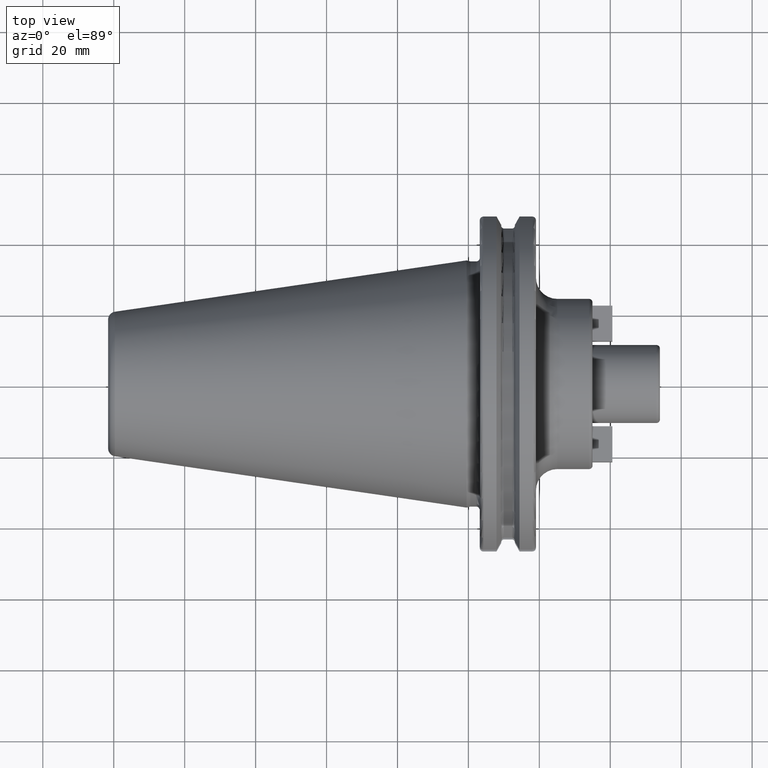
[diagram: clean part render]
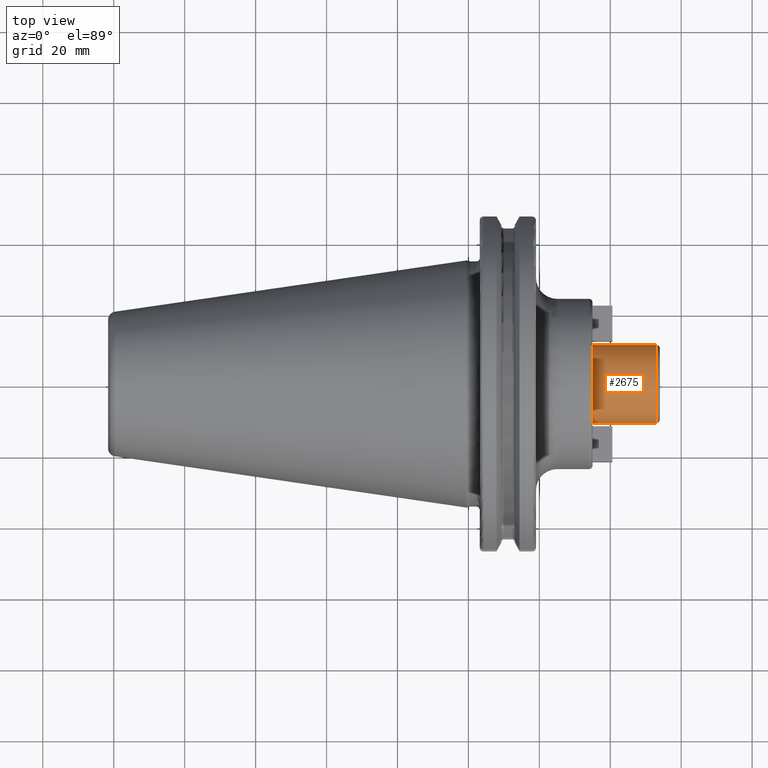
[diagram: same view with one face highlighted and labeled with its STEP entity id]
A machine part, top view. The second image highlights one B-rep face of the part: STEP entity #2675.
In plain terms, the highlighted cylindrical surface (partial cylindrical patch) has radius 11 mm, axis along (1, 0, 0).
Its self-contained STEP definition (entity closure, byte-faithful):
#944=CARTESIAN_POINT('',(3.5E1,0.E0,0.E0));
#945=DIRECTION('',(1.E0,0.E0,0.E0));
#946=DIRECTION('',(0.E0,1.E0,0.E0));
#947=AXIS2_PLACEMENT_3D('',#944,#945,#946);
#996=CARTESIAN_POINT('',(5.3E1,0.E0,0.E0));
#997=DIRECTION('',(-1.E0,0.E0,0.E0));
#998=DIRECTION('',(0.E0,-1.E0,0.E0));
#999=AXIS2_PLACEMENT_3D('',#996,#997,#998);
#1016=DIRECTION('',(-1.E0,0.E0,5.029285496446E-14));
#1017=VECTOR('',#1016,1.8E1);
#1018=CARTESIAN_POINT('',(5.3E1,1.1E1,-9.043733150410E-13));
#1019=LINE('',#1018,#1017);
#1020=DIRECTION('',(-1.E0,0.E0,-5.027375958871E-14));
#1021=VECTOR('',#1020,1.8E1);
#1022=CARTESIAN_POINT('',(5.3E1,-1.1E1,9.040295982773E-13));
#1023=LINE('',#1022,#1021);
#1566=CARTESIAN_POINT('',(3.5E1,1.1E1,0.E0));
#1567=CARTESIAN_POINT('',(3.5E1,-1.1E1,0.E0));
#1568=VERTEX_POINT('',#1566);
#1569=VERTEX_POINT('',#1567);
#1596=CARTESIAN_POINT('',(5.3E1,1.1E1,0.E0));
#1597=CARTESIAN_POINT('',(5.3E1,-1.1E1,0.E0));
#1598=VERTEX_POINT('',#1596);
#1599=VERTEX_POINT('',#1597);
#2661=CARTESIAN_POINT('',(1.73025E1,0.E0,0.E0));
#2662=DIRECTION('',(1.E0,0.E0,0.E0));
#2663=DIRECTION('',(0.E0,-1.E0,0.E0));
#2664=AXIS2_PLACEMENT_3D('',#2661,#2662,#2663);
#2665=CYLINDRICAL_SURFACE('',#2664,1.1E1);
#2667=ORIENTED_EDGE('',*,*,#2666,.F.);
#2669=ORIENTED_EDGE('',*,*,#2668,.T.);
#2670=ORIENTED_EDGE('',*,*,#2634,.F.);
#2672=ORIENTED_EDGE('',*,*,#2671,.F.);
#2673=EDGE_LOOP('',(#2667,#2669,#2670,#2672));
#2674=FACE_OUTER_BOUND('',#2673,.F.);
#2675=ADVANCED_FACE('',(#2674),#2665,.T.);
#948=CIRCLE('',#947,1.1E1);
#1000=CIRCLE('',#999,1.1E1);
#2634=EDGE_CURVE('',#1568,#1569,#948,.T.);
#2666=EDGE_CURVE('',#1599,#1598,#1000,.T.);
#2668=EDGE_CURVE('',#1599,#1569,#1023,.T.);
#2671=EDGE_CURVE('',#1598,#1568,#1019,.T.);